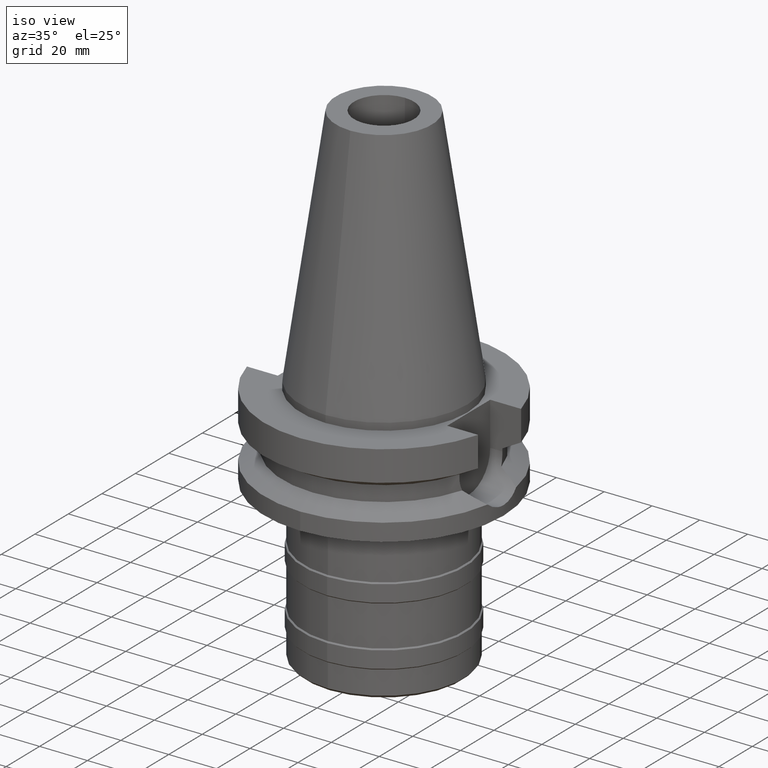
[diagram: clean part render]
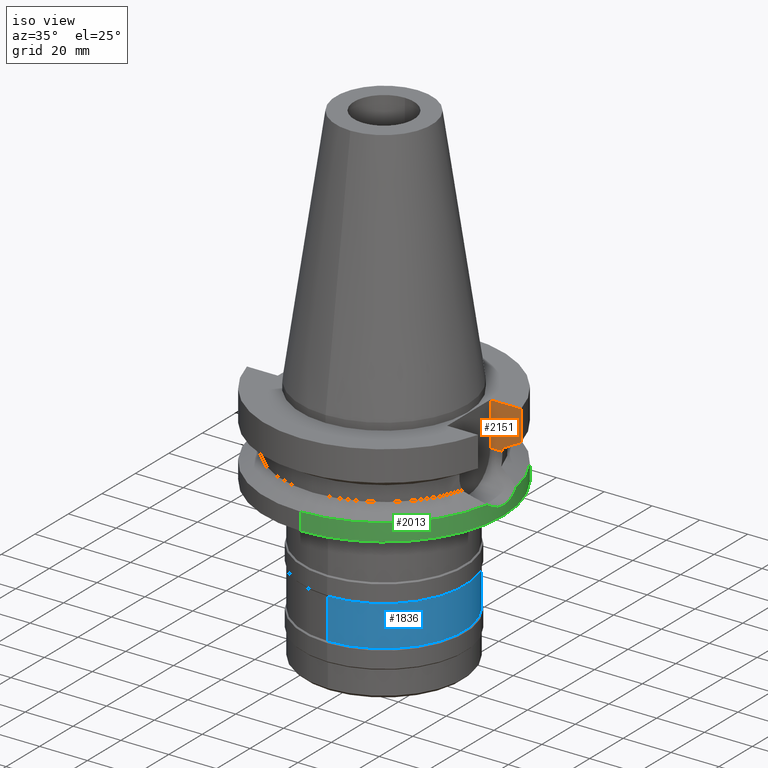
[diagram: same view with three faces highlighted in distinct colors, each labeled with its STEP entity id]
A machine part, iso view with three faces highlighted in distinct colors.
Their STEP definitions:

[orange] entity #2151 — the highlighted planar face has unit normal (0, 1, 0).
#660=DIRECTION('',(1.E0,-3.406157239848E-14,0.E0));
#661=VECTOR('',#660,5.110831884819E0);
#662=CARTESIAN_POINT('',(3.54E1,1.285E1,-2.115E1));
#663=LINE('',#662,#661);
#828=DIRECTION('',(9.475564683954E-7,-2.987263294859E-6,9.999999999951E-1));
#829=VECTOR('',#828,1.157154217395E0);
#830=CARTESIAN_POINT('',(4.051083188482E1,1.285E1,-2.115E1));
#831=LINE('',#830,#829);
#842=DIRECTION('',(1.E0,0.E0,0.E0));
#843=VECTOR('',#842,1.292057015392E1);
#844=CARTESIAN_POINT('',(3.54E1,1.285E1,-3.E0));
#845=LINE('',#844,#843);
#849=CARTESIAN_POINT('',(4.832056912902E1,1.285000385398E1,-1.566265771207E1));
#850=CARTESIAN_POINT('',(4.745408731276E1,1.285000385398E1,-1.614611804178E1));
#851=CARTESIAN_POINT('',(4.572064983851E1,1.284999774058E1,-1.711204772878E1));
#852=CARTESIAN_POINT('',(4.311729575028E1,1.285000212700E1,-1.855526389314E1));
#853=CARTESIAN_POINT('',(4.138011683082E1,1.284999654328E1,-1.951445450768E1));
#854=CARTESIAN_POINT('',(4.051083298129E1,1.284999654328E1,-1.999284578261E1));
#859=DIRECTION('',(0.E0,0.E0,-1.E0));
#860=VECTOR('',#859,1.815E1);
#861=CARTESIAN_POINT('',(3.54E1,1.285E1,-3.E0));
#862=LINE('',#861,#860);
#1151=DIRECTION('',(8.093872040058E-8,-3.043581778121E-7,1.E0));
#1152=VECTOR('',#1151,1.266265771207E1);
#1153=CARTESIAN_POINT('',(4.832056912902E1,1.285000385398E1,-1.566265771207E1));
#1154=LINE('',#1153,#1152);
#1343=CARTESIAN_POINT('',(3.54E1,1.285E1,-2.115E1));
#1344=VERTEX_POINT('',#1343);
#1345=CARTESIAN_POINT('',(4.051083188482E1,1.285E1,-2.115E1));
#1346=VERTEX_POINT('',#1345);
#1371=CARTESIAN_POINT('',(4.051083298129E1,1.284999654328E1,-1.999284578261E1));
#1372=VERTEX_POINT('',#1371);
#1388=CARTESIAN_POINT('',(4.832057015392E1,1.285E1,-3.E0));
#1390=VERTEX_POINT('',#1388);
#1391=CARTESIAN_POINT('',(3.54E1,1.285E1,-3.E0));
#1392=VERTEX_POINT('',#1391);
#1416=VERTEX_POINT('',#849);
#2134=CARTESIAN_POINT('',(3.54E1,1.285E1,-2.115E1));
#2135=DIRECTION('',(0.E0,1.E0,0.E0));
#2136=DIRECTION('',(0.E0,0.E0,1.E0));
#2137=AXIS2_PLACEMENT_3D('',#2134,#2135,#2136);
#2138=PLANE('',#2137);
#2139=ORIENTED_EDGE('',*,*,#2123,.F.);
#2140=ORIENTED_EDGE('',*,*,#2031,.F.);
#2142=ORIENTED_EDGE('',*,*,#2141,.F.);
#2144=ORIENTED_EDGE('',*,*,#2143,.T.);
#2146=ORIENTED_EDGE('',*,*,#2145,.F.);
#2148=ORIENTED_EDGE('',*,*,#2147,.T.);
#2149=EDGE_LOOP('',(#2139,#2140,#2142,#2144,#2146,#2148));
#2150=FACE_OUTER_BOUND('',#2149,.F.);
#855=B_SPLINE_CURVE_WITH_KNOTS('',3,(#849,#850,#851,#852,#853,#854),
.UNSPECIFIED.,.F.,.F.,(4,1,1,4),(0.E0,3.333333333333E-1,6.666666666667E-1,1.E0),
.UNSPECIFIED.);
#2031=EDGE_CURVE('',#1344,#1346,#663,.T.);
#2123=EDGE_CURVE('',#1346,#1372,#831,.T.);
#2141=EDGE_CURVE('',#1392,#1344,#862,.T.);
#2143=EDGE_CURVE('',#1392,#1390,#845,.T.);
#2145=EDGE_CURVE('',#1416,#1390,#1154,.T.);
#2147=EDGE_CURVE('',#1416,#1372,#855,.T.);
#2151=ADVANCED_FACE('',(#2150),#2138,.F.);

[blue] entity #1836 — the highlighted cylindrical surface (partial cylindrical patch) has radius 33.5 mm, axis along (0, 0, -1).
#397=CARTESIAN_POINT('',(0.E0,-1.056257864265E-14,-8.6E1));
#398=DIRECTION('',(0.E0,0.E0,1.E0));
#399=DIRECTION('',(0.E0,-1.E0,0.E0));
#400=AXIS2_PLACEMENT_3D('',#397,#398,#399);
#428=DIRECTION('',(0.E0,0.E0,-1.E0));
#429=VECTOR('',#428,1.7E1);
#430=CARTESIAN_POINT('',(0.E0,-3.35E1,-6.9E1));
#431=LINE('',#430,#429);
#435=DIRECTION('',(0.E0,0.E0,-1.E0));
#436=VECTOR('',#435,1.7E1);
#437=CARTESIAN_POINT('',(0.E0,3.35E1,-6.9E1));
#438=LINE('',#437,#436);
#449=CARTESIAN_POINT('',(0.E0,0.E0,-6.9E1));
#450=DIRECTION('',(0.E0,0.E0,-1.E0));
#451=DIRECTION('',(0.E0,1.E0,0.E0));
#452=AXIS2_PLACEMENT_3D('',#449,#450,#451);
#1298=CARTESIAN_POINT('',(0.E0,3.35E1,-8.6E1));
#1299=VERTEX_POINT('',#1298);
#1300=CARTESIAN_POINT('',(0.E0,-3.35E1,-8.6E1));
#1301=VERTEX_POINT('',#1300);
#1302=CARTESIAN_POINT('',(0.E0,3.35E1,-6.9E1));
#1303=VERTEX_POINT('',#1302);
#1304=CARTESIAN_POINT('',(0.E0,-3.35E1,-6.9E1));
#1305=VERTEX_POINT('',#1304);
#1824=CARTESIAN_POINT('',(0.E0,1.373318920564E-14,1.1214E2));
#1825=DIRECTION('',(0.E0,0.E0,-1.E0));
#1826=DIRECTION('',(0.E0,-1.E0,0.E0));
#1827=AXIS2_PLACEMENT_3D('',#1824,#1825,#1826);
#1828=CYLINDRICAL_SURFACE('',#1827,3.35E1);
#1829=ORIENTED_EDGE('',*,*,#1814,.T.);
#1830=ORIENTED_EDGE('',*,*,#1791,.F.);
#1831=ORIENTED_EDGE('',*,*,#1818,.F.);
#1833=ORIENTED_EDGE('',*,*,#1832,.F.);
#1834=EDGE_LOOP('',(#1829,#1830,#1831,#1833));
#1835=FACE_OUTER_BOUND('',#1834,.F.);
#401=CIRCLE('',#400,3.35E1);
#453=CIRCLE('',#452,3.35E1);
#1791=EDGE_CURVE('',#1301,#1299,#401,.T.);
#1814=EDGE_CURVE('',#1303,#1299,#438,.T.);
#1818=EDGE_CURVE('',#1305,#1301,#431,.T.);
#1832=EDGE_CURVE('',#1303,#1305,#453,.T.);
#1836=ADVANCED_FACE('',(#1835),#1828,.T.);

[green] entity #2013 — the highlighted cylindrical surface (partial cylindrical patch) has radius 50 mm, axis along (0, 0, -1).
#592=CARTESIAN_POINT('',(0.E0,1.373318920564E-14,-3.8E1));
#593=DIRECTION('',(0.E0,0.E0,1.E0));
#594=DIRECTION('',(0.E0,-1.E0,0.E0));
#595=AXIS2_PLACEMENT_3D('',#592,#593,#594);
#624=CARTESIAN_POINT('',(4.926250064874E1,-8.556052234130E0,-3.073730776427E1));
#625=CARTESIAN_POINT('',(4.936649611958E1,-7.957285792577E0,-3.127166809523E1));
#626=CARTESIAN_POINT('',(4.956428496855E1,-6.687832623331E0,-3.220416769684E1));
#627=CARTESIAN_POINT('',(4.980480412100E1,-4.595876696268E0,-3.322690243423E1));
#628=CARTESIAN_POINT('',(4.996455573366E1,-2.307453981217E0,-3.386325285715E1));
#629=CARTESIAN_POINT('',(5.E1,-7.763522324082E-1,-3.4E1));
#630=CARTESIAN_POINT('',(5.E1,1.145902009962E-14,-3.4E1));
#635=CARTESIAN_POINT('',(5.E1,1.145902009962E-14,-3.4E1));
#636=CARTESIAN_POINT('',(5.E1,7.764873758786E-1,-3.4E1));
#637=CARTESIAN_POINT('',(4.996454298092E1,2.307787695182E0,-3.386320330492E1));
#638=CARTESIAN_POINT('',(4.980476725342E1,4.596271102309E0,-3.322675214137E1));
#639=CARTESIAN_POINT('',(4.956424417380E1,6.688114634517E0,-3.220398525577E1));
#640=CARTESIAN_POINT('',(4.936647870431E1,7.957386063113E0,-3.127157861027E1));
#641=CARTESIAN_POINT('',(4.926250064874E1,8.556052234130E0,-3.073730776427E1));
#646=DIRECTION('',(0.E0,2.250196262218E-14,-1.E0));
#647=VECTOR('',#646,7.262692235730E0);
#648=CARTESIAN_POINT('',(0.E0,5.E1,-3.073730776427E1));
#649=LINE('',#648,#647);
#704=CARTESIAN_POINT('',(0.E0,0.E0,-3.073730776427E1));
#705=DIRECTION('',(0.E0,0.E0,-1.E0));
#706=DIRECTION('',(9.852500129747E-1,-1.711210446826E-1,0.E0));
#707=AXIS2_PLACEMENT_3D('',#704,#705,#706);
#748=DIRECTION('',(0.E0,-2.054527022026E-14,-1.E0));
#749=VECTOR('',#748,7.262692235730E0);
#750=CARTESIAN_POINT('',(0.E0,-5.E1,-3.073730776427E1));
#751=LINE('',#750,#749);
#774=CARTESIAN_POINT('',(0.E0,0.E0,-3.073730776427E1));
#775=DIRECTION('',(0.E0,0.E0,-1.E0));
#776=DIRECTION('',(0.E0,1.E0,0.E0));
#777=AXIS2_PLACEMENT_3D('',#774,#775,#776);
#1326=CARTESIAN_POINT('',(0.E0,-5.E1,-3.8E1));
#1327=CARTESIAN_POINT('',(0.E0,5.E1,-3.8E1));
#1328=VERTEX_POINT('',#1326);
#1329=VERTEX_POINT('',#1327);
#1330=VERTEX_POINT('',#635);
#1331=VERTEX_POINT('',#641);
#1332=VERTEX_POINT('',#624);
#1333=CARTESIAN_POINT('',(0.E0,5.E1,-3.073730776427E1));
#1334=VERTEX_POINT('',#1333);
#1335=CARTESIAN_POINT('',(0.E0,-5.E1,-3.073730776427E1));
#1336=VERTEX_POINT('',#1335);
#1993=CARTESIAN_POINT('',(0.E0,1.373318920564E-14,1.1214E2));
#1994=DIRECTION('',(0.E0,0.E0,-1.E0));
#1995=DIRECTION('',(0.E0,-1.E0,0.E0));
#1996=AXIS2_PLACEMENT_3D('',#1993,#1994,#1995);
#1997=CYLINDRICAL_SURFACE('',#1996,5.E1);
#1999=ORIENTED_EDGE('',*,*,#1998,.T.);
#2001=ORIENTED_EDGE('',*,*,#2000,.T.);
#2003=ORIENTED_EDGE('',*,*,#2002,.F.);
#2005=ORIENTED_EDGE('',*,*,#2004,.T.);
#2006=ORIENTED_EDGE('',*,*,#1982,.F.);
#2008=ORIENTED_EDGE('',*,*,#2007,.F.);
#2010=ORIENTED_EDGE('',*,*,#2009,.F.);
#2011=EDGE_LOOP('',(#1999,#2001,#2003,#2005,#2006,#2008,#2010));
#2012=FACE_OUTER_BOUND('',#2011,.F.);
#596=CIRCLE('',#595,5.E1);
#631=B_SPLINE_CURVE_WITH_KNOTS('',3,(#624,#625,#626,#627,#628,#629,#630),
.UNSPECIFIED.,.F.,.F.,(4,1,1,1,4),(0.E0,2.5E-1,5.E-1,7.5E-1,1.E0),
.UNSPECIFIED.);
#642=B_SPLINE_CURVE_WITH_KNOTS('',3,(#635,#636,#637,#638,#639,#640,#641),
.UNSPECIFIED.,.F.,.F.,(4,1,1,1,4),(0.E0,2.5E-1,5.E-1,7.5E-1,1.E0),
.UNSPECIFIED.);
#708=CIRCLE('',#707,5.E1);
#778=CIRCLE('',#777,5.E1);
#1982=EDGE_CURVE('',#1328,#1329,#596,.T.);
#1998=EDGE_CURVE('',#1332,#1330,#631,.T.);
#2000=EDGE_CURVE('',#1330,#1331,#642,.T.);
#2002=EDGE_CURVE('',#1334,#1331,#778,.T.);
#2004=EDGE_CURVE('',#1334,#1329,#649,.T.);
#2007=EDGE_CURVE('',#1336,#1328,#751,.T.);
#2009=EDGE_CURVE('',#1332,#1336,#708,.T.);
#2013=ADVANCED_FACE('',(#2012),#1997,.T.);